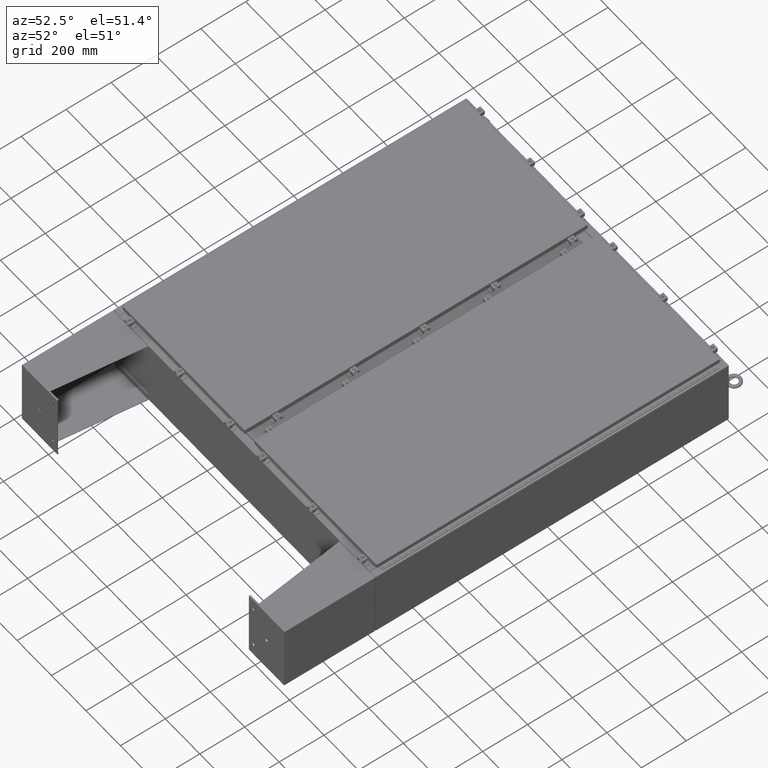
[diagram: clean part render]
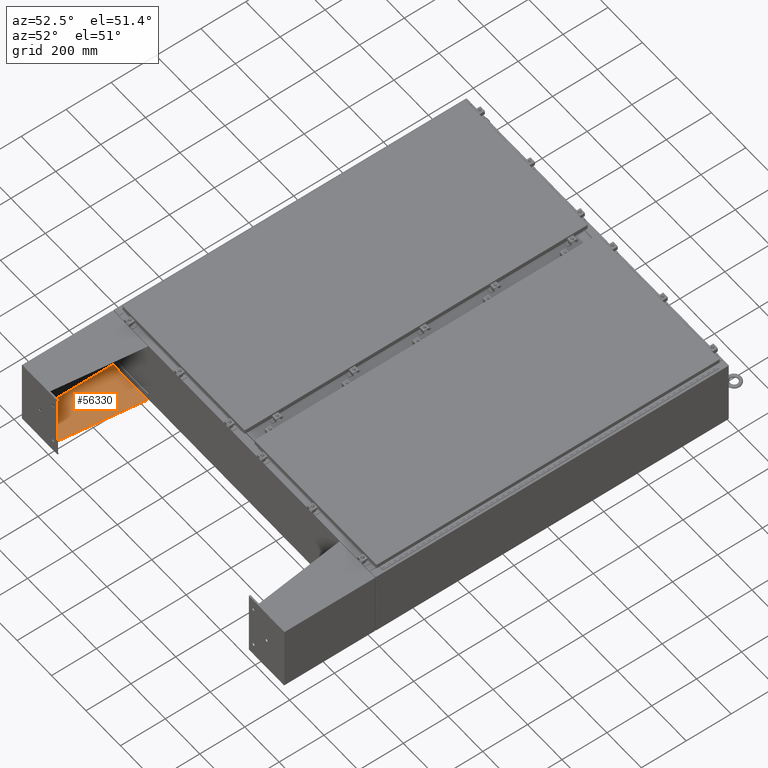
[diagram: same view with one face highlighted and labeled with its STEP entity id]
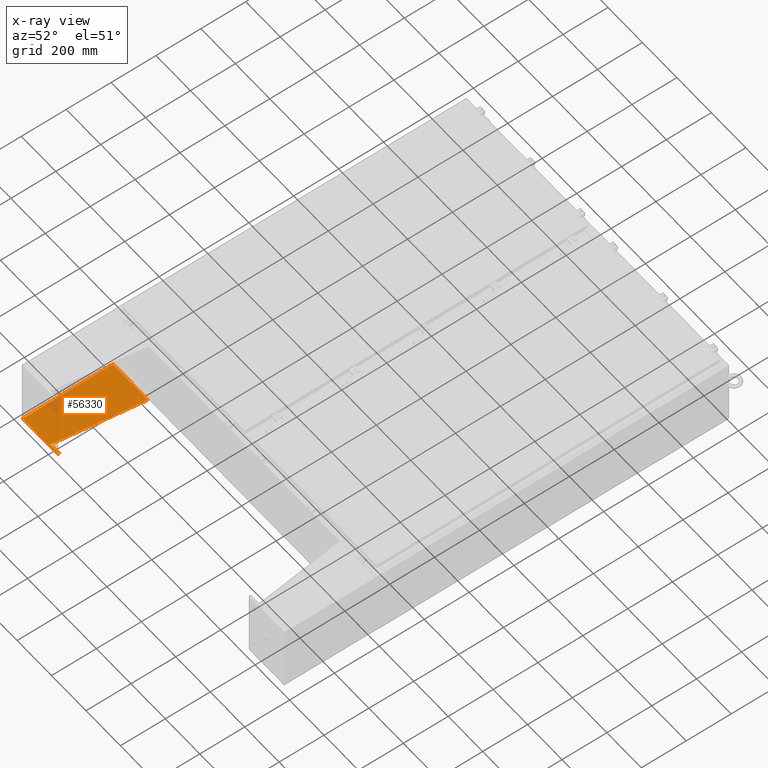
[diagram: x-ray of the same camera — body ghosted, the highlighted face saturated]
A machine part, auxiliary view. The second image highlights one B-rep face of the part: STEP entity #56330.
The next image is the same camera in x-ray: the body ghosted, the highlighted face saturated — about 3% of this face is hidden behind the body in this view.
In plain terms, the highlighted planar face has unit normal (-0, -0, 1).
Its self-contained STEP definition (entity closure, byte-faithful):
#605 = VECTOR ( 'NONE', #61997, 39.37007874015748100 ) ;
#607 = ORIENTED_EDGE ( 'NONE', *, *, #65222, .T. ) ;
#1908 = VERTEX_POINT ( 'NONE', #8823 ) ;
#2112 = DIRECTION ( 'NONE',  ( -1.000000000000000000, 0.0000000000000000000, 3.550958521948298200E-015 ) ) ;
#4996 = EDGE_LOOP ( 'NONE', ( #23764, #607, #13355, #65988, #29607, #6784 ) ) ;
#6651 = VERTEX_POINT ( 'NONE', #21604 ) ;
#6784 = ORIENTED_EDGE ( 'NONE', *, *, #15833, .F. ) ;
#7559 = DIRECTION ( 'NONE',  ( 4.399772607369798900E-016, 0.9922942345449394800, 0.1239038017531047700 ) ) ;
#7717 = DIRECTION ( 'NONE',  ( -3.550958521948298200E-015, 0.0000000000000000000, -1.000000000000000000 ) ) ;
#8823 = CARTESIAN_POINT ( 'NONE',  ( 5.896000000000020300, -7.749999999999999100, 6.052216497445952500 ) ) ;
#13127 = EDGE_CURVE ( 'NONE', #58126, #6651, #63336, .T. ) ;
#13355 = ORIENTED_EDGE ( 'NONE', *, *, #69597, .T. ) ;
#13680 = VERTEX_POINT ( 'NONE', #52060 ) ;
#13722 = LINE ( 'NONE', #65045, #69308 ) ;
#15833 = EDGE_CURVE ( 'NONE', #13680, #58126, #57049, .T. ) ;
#18502 = DIRECTION ( 'NONE',  ( -3.550958521948298200E-015, -2.731506555344845100E-016, -1.000000000000000000 ) ) ;
#20754 = EDGE_CURVE ( 'NONE', #6651, #63458, #30835, .T. ) ;
#21604 = CARTESIAN_POINT ( 'NONE',  ( 5.895999999999999900, 7.856999999999996700, 0.03900000000001780500 ) ) ;
#23695 = CARTESIAN_POINT ( 'NONE',  ( 5.896000000000028300, -7.749999999999999100, 8.001000000000033200 ) ) ;
#23764 = ORIENTED_EDGE ( 'NONE', *, *, #59037, .F. ) ;
#24090 = LINE ( 'NONE', #39772, #38382 ) ;
#29607 = ORIENTED_EDGE ( 'NONE', *, *, #13127, .F. ) ;
#30835 = LINE ( 'NONE', #35111, #605 ) ;
#34639 = VECTOR ( 'NONE', #68583, 39.37007874015748100 ) ;
#35111 = CARTESIAN_POINT ( 'NONE',  ( 5.896000000000015900, 7.856999999999997500, 0.03900000000001780500 ) ) ;
#38382 = VECTOR ( 'NONE', #7559, 39.37007874015748100 ) ;
#39745 = DIRECTION ( 'NONE',  ( 3.550958521948298200E-015, 0.0000000000000000000, 1.000000000000000000 ) ) ;
#39772 = CARTESIAN_POINT ( 'NONE',  ( 5.896000000000023000, -7.749999999999999100, 6.052216497445952500 ) ) ;
#41748 = CARTESIAN_POINT ( 'NONE',  ( 5.895999999999999900, -8.000000000000001800, 0.03900000000001780500 ) ) ;
#44930 = CARTESIAN_POINT ( 'NONE',  ( 5.896000000000029200, -7.999999999999999100, 8.001000000000017200 ) ) ;
#46881 = CARTESIAN_POINT ( 'NONE',  ( 5.896000000000028300, -7.749999999999999100, 8.001000000000033200 ) ) ;
#47323 = FACE_OUTER_BOUND ( 'NONE', #4996, .T. ) ;
#51734 = LINE ( 'NONE', #23695, #55103 ) ;
#52060 = CARTESIAN_POINT ( 'NONE',  ( 5.896000000000029200, -7.999999999999999100, 8.001000000000017200 ) ) ;
#53261 = CARTESIAN_POINT ( 'NONE',  ( 5.896000000000029200, 7.856999999999997500, 8.001000000000017200 ) ) ;
#54449 = DIRECTION ( 'NONE',  ( -0.0000000000000000000, -1.000000000000000000, -0.0000000000000000000 ) ) ;
#55103 = VECTOR ( 'NONE', #7717, 39.37007874015748100 ) ;
#55358 = VECTOR ( 'NONE', #18502, 39.37007874015748100 ) ;
#56163 = CARTESIAN_POINT ( 'NONE',  ( 5.895999999999999900, -8.000000000000001800, 1.748382715945128500E-014 ) ) ;
#56330 = ADVANCED_FACE ( 'NONE', ( #47323 ), #66586, .T. ) ;
#57049 = LINE ( 'NONE', #56163, #55358 ) ;
#57764 = CARTESIAN_POINT ( 'NONE',  ( 5.895999999999999900, -8.000000000000000000, 0.03900000000001780500 ) ) ;
#58126 = VERTEX_POINT ( 'NONE', #41748 ) ;
#58639 = AXIS2_PLACEMENT_3D ( 'NONE', #44930, #2112, #39745 ) ;
#59037 = EDGE_CURVE ( 'NONE', #59407, #13680, #13722, .T. ) ;
#59407 = VERTEX_POINT ( 'NONE', #46881 ) ;
#61997 = DIRECTION ( 'NONE',  ( 0.0000000000000000000, 0.0000000000000000000, 1.000000000000000000 ) ) ;
#63336 = LINE ( 'NONE', #57764, #34639 ) ;
#63458 = VERTEX_POINT ( 'NONE', #53261 ) ;
#65045 = CARTESIAN_POINT ( 'NONE',  ( 5.896000000000029200, -7.999999999999999100, 8.001000000000017200 ) ) ;
#65222 = EDGE_CURVE ( 'NONE', #59407, #1908, #51734, .T. ) ;
#65988 = ORIENTED_EDGE ( 'NONE', *, *, #20754, .F. ) ;
#66586 = PLANE ( 'NONE',  #58639 ) ;
#68583 = DIRECTION ( 'NONE',  ( 0.0000000000000000000, 1.000000000000000000, 0.0000000000000000000 ) ) ;
#69308 = VECTOR ( 'NONE', #54449, 39.37007874015748100 ) ;
#69597 = EDGE_CURVE ( 'NONE', #1908, #63458, #24090, .T. ) ;